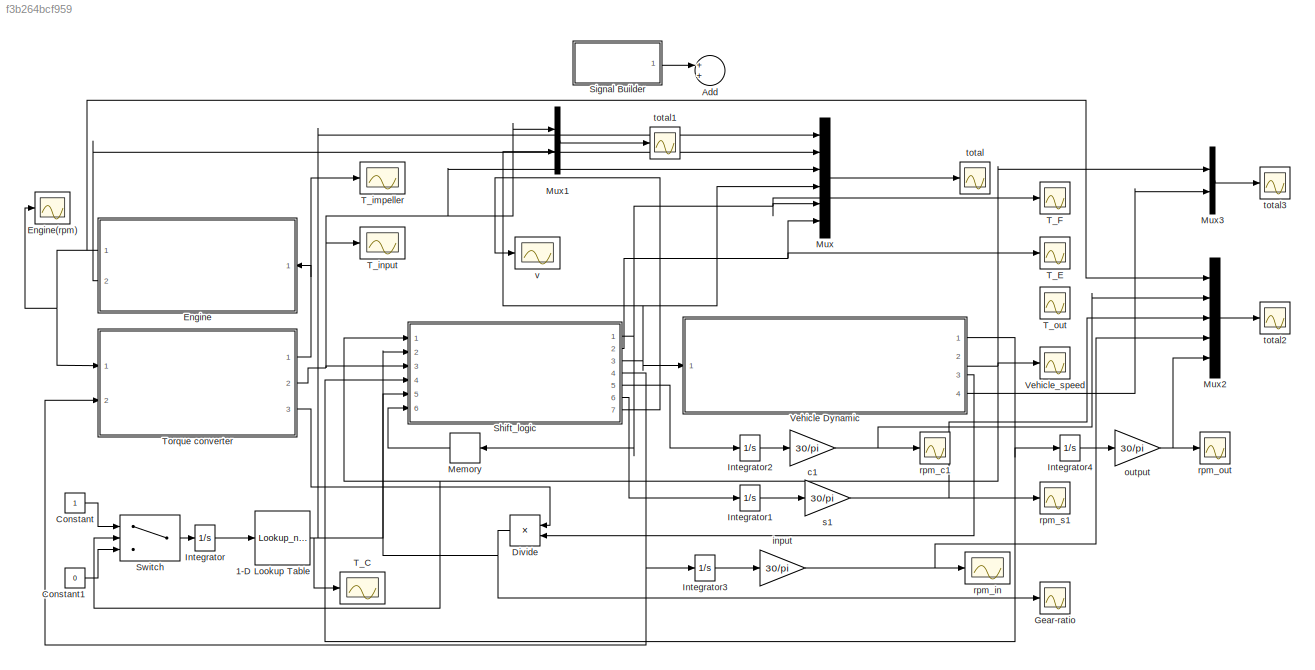
MODEL slx_f3b264bcf959
KIND model
CONFIG AbsTol = auto
CONFIG FixedStep = auto
CONFIG MaxStep = 0.01
CONFIG MinStep = auto
CONFIG RelTol = 1e-3
CONFIG SampleTimeConstraint = Unconstrained
CONFIG Solver = ode45
CONFIG SolverMode = SingleTasking
CONFIG SolverName = ode45
CONFIG StartTime = 0.0
CONFIG StopTime = 5
WORKSPACE source: MAT-file member
WORKSPACE A = 29.46
BLOCK [Lookup_n-D] 1-D Lookup Table
  BreakpointsForDimension1 = [0,0.1,0.2,0.3,0.4,0.5,0.6,0.7,0.8,0.9,1,1.1,1.2,1.3,1.4,1.5,1.6,1.7,1.8]
  InternalRulePriority = Speed
  NumberOfTableDimensions = 1
  Ports = [1, 1]
  RndMeth = Simplest
  Table = T_C
BLOCK [Sum] Add
  InputSameDT = off
  OutDataTypeStr = Inherit: Inherit via internal rule
  Ports = [2, 1]
  SaturateOnIntegerOverflow = off
BLOCK [Constant] Constant
BLOCK [Constant] Constant1
  Value = 0
BLOCK [Product] Divide
  InputSameDT = off
  Inputs = */
  OutDataTypeStr = Inherit: Inherit via internal rule
  Ports = [2, 1]
  RndMeth = Floor
  SaturateOnIntegerOverflow = off
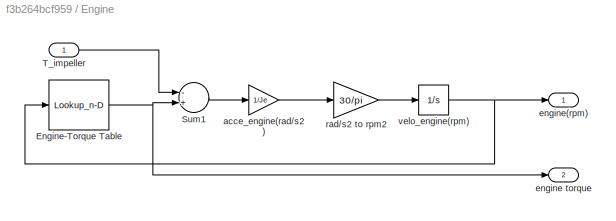
BLOCK [SubSystem] Engine
  Ports = [1, 2]
  RequestExecContextInheritance = off
  Variant = off
BLOCK [Scope] Engine(rpm)
  Ports = [1]
  ScopeSpecificationString = C++SS(StrPVP('Location','[162, 223, 1270, 752]'),StrPVP('Open','off'),MxPVP('AxesTitles',24,'struct(''axes1'',''%<SignalLabel>'')'),MxPVP('ScopeGraphics',28,'struct(''FigureColor'',''[0.5 0.5 0.5]'',''AxesColor'',''[0 0 0]'',''AxesTickColor'',''[1 1 1]'',''LineColors'',''[1 1 0;1 0 1;0 1 1;1 0 0;0 1 0;0 0 1]'',''LineStyles'',''-|-|-|-|-|-'',''LineWidths'',''[0.5 0.5 0.5 0.5 0.5 0.5]'',''MarkerStyl...<+306ch>
BLOCK [Lookup_n-D] Engine/Engine-Torque Table
  BreakpointsForDimension1 = Engine_speed
  InternalRulePriority = Speed
  NumberOfTableDimensions = 1
  Ports = [1, 1]
  RndMeth = Simplest
  Table = Engine_torque3
BLOCK [Sum] Engine/Sum1
  Inputs = -+
  Ports = [2, 1]
BLOCK [Inport] Engine/T_impeller
  IconDisplay = Port number
BLOCK [Gain] Engine/acce_engine(rad//s2)
  Gain = 1/Je
  OutDataTypeStr = Inherit: Inherit via internal rule
  ParamDataTypeStr = Inherit: Inherit via internal rule
  SaturateOnIntegerOverflow = off
BLOCK [Outport] Engine/engine torque
  IconDisplay = Port number
  Port = 2
BLOCK [Outport] Engine/engine(rpm)
  IconDisplay = Port number
BLOCK [Gain] Engine/rad//s2 to rpm2
  Gain = 30/pi
  OutDataTypeStr = Inherit: Inherit via internal rule
  ParamDataTypeStr = Inherit: Inherit via internal rule
  SaturateOnIntegerOverflow = off
BLOCK [Integrator] Engine/velo_engine(rpm)
  InitialCondition = 1000
  LowerSaturationLimit = 700
  Ports = [1, 1]
  UpperSaturationLimit = 7000
BLOCK [Scope] Gear-ratio
  Ports = [1]
  ScopeSpecificationString = C++SS(StrPVP('Location','[511, 295, 1037, 595]'),StrPVP('Open','off'),MxPVP('AxesTitles',24,'struct(''axes1'',''%<SignalLabel>'')'),MxPVP('ScopeGraphics',28,'struct(''FigureColor'',''[0.5 0.5 0.5]'',''AxesColor'',''[0 0 0]'',''AxesTickColor'',''[1 1 1]'',''LineColors'',''[1 1 0;1 0 1;0 1 1;1 0 0;0 1 0;0 0 1]'',''LineStyles'',''-|-|-|-|-|-'',''LineWidths'',''[0.5 0.5 0.5 0.5 0.5 0.5]'',''MarkerStyl...<+302ch>
BLOCK [Integrator] Integrator
  Ports = [1, 1]
BLOCK [Integrator] Integrator1
  Ports = [1, 1]
BLOCK [Integrator] Integrator2
  Ports = [1, 1]
BLOCK [Integrator] Integrator3
  Ports = [1, 1]
BLOCK [Integrator] Integrator4
  Ports = [1, 1]
BLOCK [Memory] Memory
  X0 = 1
BLOCK [Mux] Mux
  DisplayOption = bar
  Inputs = 6
  Ports = [6, 1]
BLOCK [Mux] Mux1
  DisplayOption = bar
  Inputs = 2
  Ports = [2, 1]
BLOCK [Mux] Mux2
  DisplayOption = bar
  Inputs = 5
  Ports = [5, 1]
BLOCK [Mux] Mux3
  DisplayOption = bar
  Inputs = 2
  Ports = [2, 1]
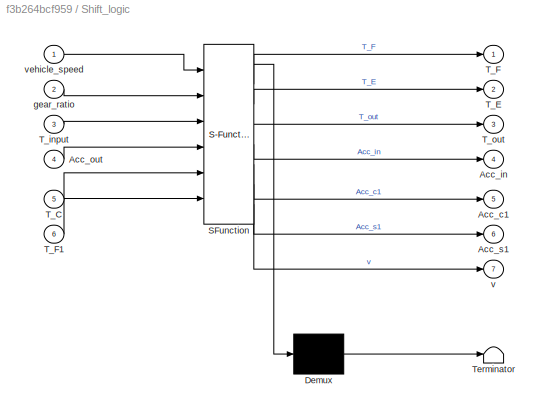
BLOCK [SubSystem] Shift_logic
  ErrorFcn = Stateflow.Translate.translate
  MinAlgLoopOccurrences = on
  PermitHierarchicalResolution = ExplicitOnly
  Ports = [6, 7]
  RequestExecContextInheritance = off
  SFBlockType = MATLAB Function
  TreatAsAtomicUnit = on
  Variant = off
BLOCK [Demux] Shift_logic/ Demux 
  Outputs = 1
  Ports = [1, 1]
BLOCK [S-Function] Shift_logic/ SFunction 
  EnableBusSupport = on
  FunctionName = sf_sfun
  PortCounts = [6 8]
  Ports = [6, 8]
  SFunctionDeploymentMode = off
  Tag = Stateflow S-Function projectme5481copy5 2
BLOCK [Terminator] Shift_logic/ Terminator 
BLOCK [Outport] Shift_logic/Acc_c1
  IconDisplay = Port number
  Port = 5
BLOCK [Outport] Shift_logic/Acc_in
  IconDisplay = Port number
  Port = 4
BLOCK [Inport] Shift_logic/Acc_out
  IconDisplay = Port number
  Port = 4
BLOCK [Outport] Shift_logic/Acc_s1
  IconDisplay = Port number
  Port = 6
BLOCK [Inport] Shift_logic/T_C
  IconDisplay = Port number
  Port = 5
BLOCK [Outport] Shift_logic/T_E
  IconDisplay = Port number
  Port = 2
BLOCK [Outport] Shift_logic/T_F
  IconDisplay = Port number
BLOCK [Inport] Shift_logic/T_F1
  IconDisplay = Port number
  Port = 6
BLOCK [Inport] Shift_logic/T_input
  IconDisplay = Port number
  Port = 3
BLOCK [Outport] Shift_logic/T_out
  IconDisplay = Port number
  Port = 3
BLOCK [Inport] Shift_logic/gear_ratio
  IconDisplay = Port number
  Port = 2
BLOCK [Outport] Shift_logic/v
  IconDisplay = Port number
  Port = 7
BLOCK [Inport] Shift_logic/vehicle_speed
  IconDisplay = Port number
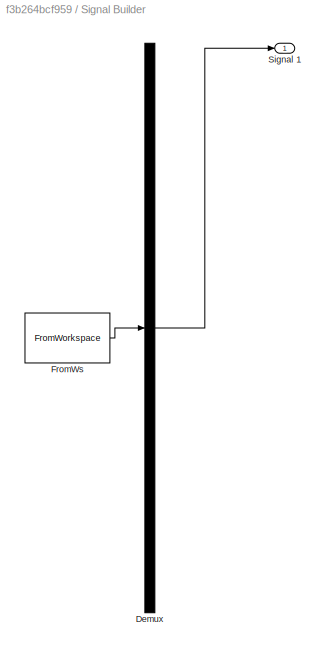
BLOCK [SubSystem] Signal Builder
  ClipboardFcn = sigbuilder_block('clipboard');
  CloseFcn = sigbuilder_block('close');
  ContinueFcn = sigbuilder_block('continue');
  CopyFcn = sigbuilder_block('copy');
  DeleteFcn = sigbuilder_block('delete');
  LoadFcn = sigbuilder_block('load');
  MaskHideContents = on
  ModelCloseFcn = sigbuilder_block('modelClose');
  NameChangeFcn = sigbuilder_block('namechange');
  OpenFcn = sigbuilder_block('open',[437.6 199.2 550.4 400 ]);
  PauseFcn = sigbuilder_block('pause');
  Ports = [0, 1]
  PreSaveFcn = sigbuilder_block('preSave');
  RequestExecContextInheritance = off
  StartFcn = sigbuilder_block('start');
  StopFcn = sigbuilder_block('stop');
  Tag = STV Subsys
  Variant = off
BLOCK [Demux] Signal Builder/Demux
  Outputs = 1
  Ports = [1, 1]
  Tag = STV Demux
BLOCK [FromWorkspace] Signal Builder/FromWs
  SampleTime = 0
  Tag = STV FromWs
  VariableName = tuvar
  ZeroCross = on
BLOCK [Outport] Signal Builder/Signal 1
  IconDisplay = Port number
  Tag = STV Outport
BLOCK [Switch] Switch
  InputSameDT = off
  SaturateOnIntegerOverflow = off
  Threshold = 15
BLOCK [Scope] T_C
  Ports = [1]
  ScopeSpecificationString = Simulink.scopes.TimeScopeBlockCfg('CurrentConfiguration', extmgr.ConfigurationSet(extmgr.Configuration('Core','General UI',true),extmgr.Configuration('Core','Source UI',true),extmgr.Configuration('Sources','WiredSimulink',true,'DataLoggingVariableName','ScopeData10','DataLoggingLimitDataPoints',true,'DataLoggingSaveFormat','Array','DataLoggingDecimation','1','DataLoggingDecimateData',true),extmgr....<+1682ch>
BLOCK [Scope] T_E
  Ports = [1]
  ScopeSpecificationString = C++SS(StrPVP('Location','[188, 365, 512, 604]'),StrPVP('Open','off'),MxPVP('AxesTitles',24,'struct(''axes1'',''%<SignalLabel>'')'),StrPVP('ShowLegends','off'),StrPVP('ScrollMode','off'),StrPVP('LimitDataPoints','on'),StrPVP('DataFormat','Array'),StrPVP('Decimation','1'),StrPVP('BlockParamSampleInput','off'))  <repeated x5 — deduplicated; at blocks: T_E, T_impeller, T_input, Vehicle_speed, rpm_s1>
BLOCK [Scope] T_F
  Ports = [1]
  ScopeSpecificationString = C++SS(StrPVP('Location','[188, 365, 512, 604]'),StrPVP('Open','off'),MxPVP('AxesTitles',24,'struct(''axes1'',''%<SignalLabel>'')'),MxPVP('ScopeGraphics',28,'struct(''FigureColor'',''[0.5 0.5 0.5]'',''AxesColor'',''[0 0 0]'',''AxesTickColor'',''[1 1 1]'',''LineColors'',''[1 1 0;1 0 1;0 1 1;1 0 0;0 1 0;0 0 1]'',''LineStyles'',''-|-|-|-|-|-'',''LineWidths'',''[0.5 0.5 0.5 0.5 0.5 0.5]'',''MarkerStyle...<+219ch>
BLOCK [Scope] T_impeller
  Ports = [1]
BLOCK [Scope] T_input
  Ports = [1]
BLOCK [Scope] T_out
  Ports = [1]
  ScopeSpecificationString = C++SS(StrPVP('Location','[268, 326, 1257, 650]'),StrPVP('Open','off'),MxPVP('AxesTitles',24,'struct(''axes1'',''%<SignalLabel>'')'),MxPVP('ScopeGraphics',28,'struct(''FigureColor'',''[0.5 0.5 0.5]'',''AxesColor'',''[0 0 0]'',''AxesTickColor'',''[1 1 1]'',''LineColors'',''[1 1 0;1 0 1;0 1 1;1 0 0;0 1 0;0 0 1]'',''LineStyles'',''-|-|-|-|-|-'',''LineWidths'',''[0.5 0.5 0.5 0.5 0.5 0.5]'',''MarkerStyl...<+305ch>
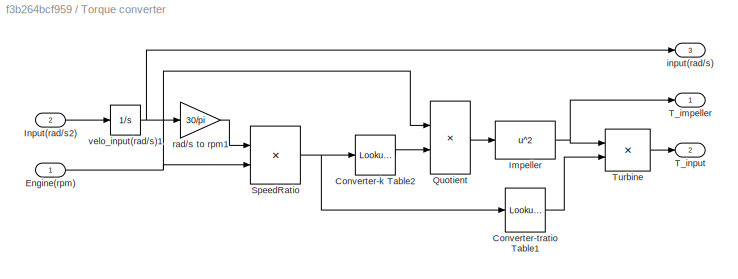
BLOCK [SubSystem] Torque converter
  Ports = [2, 3]
  RequestExecContextInheritance = off
  Variant = off
BLOCK [Lookup_n-D] Torque converter/Converter-k Table2
  BreakpointsForDimension1 = Converter_sratio
  InternalRulePriority = Speed
  NumberOfTableDimensions = 1
  Ports = [1, 1]
  RndMeth = Simplest
  Table = Converter_K
BLOCK [Lookup_n-D] Torque converter/Converter-tratio Table1
  BreakpointsForDimension1 = Converter_sratio
  InternalRulePriority = Speed
  NumberOfTableDimensions = 1
  Ports = [1, 1]
  RndMeth = Simplest
  Table = Converter_tratio
BLOCK [Inport] Torque converter/Engine(rpm)
  IconDisplay = Port number
BLOCK [Fcn] Torque converter/Impeller
  Expr = u^2
BLOCK [Inport] Torque converter/Input(rad//s2)
  IconDisplay = Port number
  Port = 2
BLOCK [Product] Torque converter/Quotient
  Inputs = */
  Ports = [2, 1]
  RndMeth = Floor
BLOCK [Product] Torque converter/SpeedRatio
  Inputs = */
  Ports = [2, 1]
  RndMeth = Floor
BLOCK [Outport] Torque converter/T_impeller
  IconDisplay = Port number
BLOCK [Outport] Torque converter/T_input
  IconDisplay = Port number
  Port = 2
BLOCK [Product] Torque converter/Turbine
  Ports = [2, 1]
  RndMeth = Floor
BLOCK [Outport] Torque converter/input(rad//s)
  IconDisplay = Port number
  Port = 3
BLOCK [Gain] Torque converter/rad//s to rpm1
  Gain = 30/pi
  OutDataTypeStr = Inherit: Inherit via internal rule
  ParamDataTypeStr = Inherit: Inherit via internal rule
  SaturateOnIntegerOverflow = off
BLOCK [Integrator] Torque converter/velo_input(rad//s)1
  Ports = [1, 1]
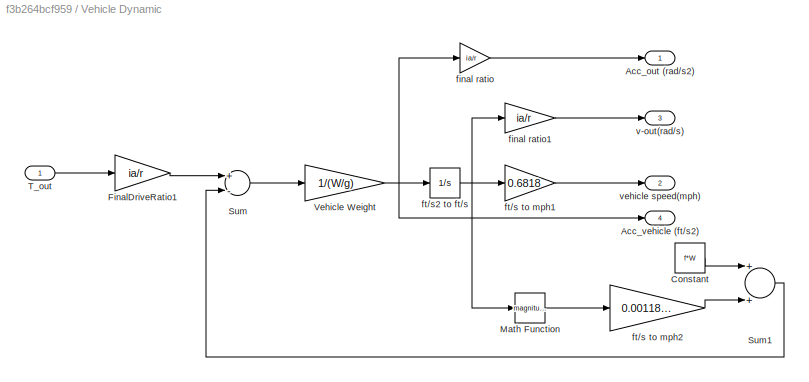
BLOCK [SubSystem] Vehicle Dynamic
  Ports = [1, 4]
  RequestExecContextInheritance = off
  Variant = off
BLOCK [Outport] Vehicle Dynamic/Acc_out (rad//s2)
  IconDisplay = Port number
BLOCK [Outport] Vehicle Dynamic/Acc_vehicle (ft//s2)
  IconDisplay = Port number
  Port = 4
BLOCK [Constant] Vehicle Dynamic/Constant
  Value = f*W
BLOCK [Gain] Vehicle Dynamic/FinalDriveRatio1
  Gain = ia/r
BLOCK [Math] Vehicle Dynamic/Math Function
  Operator = magnitude^2
  Ports = [1, 1]
BLOCK [Sum] Vehicle Dynamic/Sum
  Inputs = +-
  Ports = [2, 1]
BLOCK [Sum] Vehicle Dynamic/Sum1
  Ports = [2, 1]
BLOCK [Inport] Vehicle Dynamic/T_out
  IconDisplay = Port number
BLOCK [Gain] Vehicle Dynamic/Vehicle Weight
  Gain = 1/(W/g)
BLOCK [Gain] Vehicle Dynamic/final ratio
  Gain = ia/r
  OutDataTypeStr = Inherit: Inherit via internal rule
  ParamDataTypeStr = Inherit: Inherit via internal rule
  SaturateOnIntegerOverflow = off
BLOCK [Gain] Vehicle Dynamic/final ratio1
  Gain = ia/r
  OutDataTypeStr = Inherit: Inherit via internal rule
  ParamDataTypeStr = Inherit: Inherit via internal rule
  SaturateOnIntegerOverflow = off
BLOCK [Gain] Vehicle Dynamic/ft//s to mph1
  Gain = 0.6818
  OutDataTypeStr = Inherit: Inherit via internal rule
  ParamDataTypeStr = Inherit: Inherit via internal rule
  SaturateOnIntegerOverflow = off
BLOCK [Gain] Vehicle Dynamic/ft//s to mph2
  Gain = 0.00118*Cd*A
  OutDataTypeStr = Inherit: Inherit via internal rule
  ParamDataTypeStr = Inherit: Inherit via internal rule
  SaturateOnIntegerOverflow = off
BLOCK [Integrator] Vehicle Dynamic/ft//s2 to ft//s
  Ports = [1, 1]
BLOCK [Outport] Vehicle Dynamic/v-out(rad//s)
  IconDisplay = Port number
  Port = 3
BLOCK [Outport] Vehicle Dynamic/vehicle speed(mph)
  IconDisplay = Port number
  Port = 2
BLOCK [Scope] Vehicle_speed
  Ports = [1]
BLOCK [Gain] c1
  Gain = 30/pi
  OutDataTypeStr = Inherit: Inherit via internal rule
  ParamDataTypeStr = Inherit: Inherit via internal rule
  SaturateOnIntegerOverflow = off
BLOCK [Gain] input
  Gain = 30/pi
  OutDataTypeStr = Inherit: Inherit via internal rule
  ParamDataTypeStr = Inherit: Inherit via internal rule
  SaturateOnIntegerOverflow = off
BLOCK [Gain] output
  Gain = 30/pi
  OutDataTypeStr = Inherit: Inherit via internal rule
  ParamDataTypeStr = Inherit: Inherit via internal rule
  SaturateOnIntegerOverflow = off
BLOCK [Scope] rpm_c1
  Ports = [1]
  ScopeSpecificationString = C++SS(StrPVP('Location','[188, 365, 512, 604]'),StrPVP('Open','off'),MxPVP('AxesTitles',24,'struct(''axes1'',''%<SignalLabel>'')'),StrPVP('ShowLegends','off'),StrPVP('SaveName','ScopeData1'),StrPVP('ScrollMode','off'),StrPVP('LimitDataPoints','on'),StrPVP('DataFormat','Array'),StrPVP('Decimation','1'),StrPVP('BlockParamSampleInput','off'))
BLOCK [Scope] rpm_in
  Ports = [1]
  ScopeSpecificationString = C++SS(StrPVP('Location','[1033, 513, 1522, 752]'),StrPVP('Open','off'),MxPVP('AxesTitles',24,'struct(''axes1'',''%<SignalLabel>'')'),MxPVP('ScopeGraphics',28,'struct(''FigureColor'',''[0.5 0.5 0.5]'',''AxesColor'',''[0 0 0]'',''AxesTickColor'',''[1 1 1]'',''LineColors'',''[1 1 0;1 0 1;0 1 1;1 0 0;0 1 0;0 0 1]'',''LineStyles'',''-|-|-|-|-|-'',''LineWidths'',''[0.5 0.5 0.5 0.5 0.5 0.5]'',''MarkerSty...<+308ch>
BLOCK [Scope] rpm_out
  Ports = [1]
  ScopeSpecificationString = C++SS(StrPVP('Location','[188, 365, 1317, 873]'),StrPVP('Open','off'),MxPVP('AxesTitles',24,'struct(''axes1'',''%<SignalLabel>'')'),MxPVP('ScopeGraphics',28,'struct(''FigureColor'',''[0.5 0.5 0.5]'',''AxesColor'',''[0 0 0]'',''AxesTickColor'',''[1 1 1]'',''LineColors'',''[1 1 0;1 0 1;0 1 1;1 0 0;0 1 0;0 0 1]'',''LineStyles'',''-|-|-|-|-|-'',''LineWidths'',''[0.5 0.5 0.5 0.5 0.5 0.5]'',''MarkerStyl...<+272ch>
BLOCK [Scope] rpm_s1
  Ports = [1]
BLOCK [Gain] s1
  Gain = 30/pi
  OutDataTypeStr = Inherit: Inherit via internal rule
  ParamDataTypeStr = Inherit: Inherit via internal rule
  SaturateOnIntegerOverflow = off
BLOCK [Scope] total
  Ports = [1]
  ScopeSpecificationString = Simulink.scopes.TimeScopeBlockCfg('CurrentConfiguration', extmgr.ConfigurationSet(extmgr.Configuration('Core','General UI',true),extmgr.Configuration('Core','Source UI',true),extmgr.Configuration('Sources','WiredSimulink',true,'DataLoggingVariableName','ScopeData11','DataLoggingLimitDataPoints',true,'DataLoggingSaveFormat','Array','DataLoggingDecimation','1','DataLoggingDecimateData',true),extmgr....<+1796ch>
BLOCK [Scope] total1
  Ports = [1]
  ScopeSpecificationString = Simulink.scopes.TimeScopeBlockCfg('CurrentConfiguration', extmgr.ConfigurationSet(extmgr.Configuration('Core','General UI',true),extmgr.Configuration('Core','Source UI',true),extmgr.Configuration('Sources','WiredSimulink',true,'DataLoggingVariableName','ScopeData12','DataLoggingLimitDataPoints',true,'DataLoggingSaveFormat','Array','DataLoggingDecimation','1','DataLoggingDecimateData',true),extmgr....<+1730ch>
BLOCK [Scope] total2
  Ports = [1]
  ScopeSpecificationString = Simulink.scopes.TimeScopeBlockCfg('CurrentConfiguration', extmgr.ConfigurationSet(extmgr.Configuration('Core','General UI',true),extmgr.Configuration('Core','Source UI',true),extmgr.Configuration('Sources','WiredSimulink',true,'DataLoggingVariableName','ScopeData5','DataLoggingLimitDataPoints',true,'DataLoggingSaveFormat','Array','DataLoggingDecimation','1','DataLoggingDecimateData',true),extmgr.C...<+1790ch>
BLOCK [Scope] total3
  Ports = [1]
  ScopeSpecificationString = Simulink.scopes.TimeScopeBlockCfg('CurrentConfiguration', extmgr.ConfigurationSet(extmgr.Configuration('Core','General UI',true),extmgr.Configuration('Core','Source UI',true),extmgr.Configuration('Sources','WiredSimulink',true,'DataLoggingVariableName','ScopeData13','DataLoggingLimitDataPoints',true,'DataLoggingSaveFormat','Array','DataLoggingDecimation','1','DataLoggingDecimateData',true),extmgr....<+1773ch>
BLOCK [Scope] v 
  Ports = [1]
  ScopeSpecificationString = C++SS(StrPVP('Location','[531, 657, 1424, 896]'),StrPVP('Open','off'),MxPVP('AxesTitles',24,'struct(''axes1'',''%<SignalLabel>'')'),MxPVP('ScopeGraphics',28,'struct(''FigureColor'',''[0.5 0.5 0.5]'',''AxesColor'',''[0 0 0]'',''AxesTickColor'',''[1 1 1]'',''LineColors'',''[1 1 0;1 0 1;0 1 1;1 0 0;0 1 0;0 0 1]'',''LineStyles'',''-|-|-|-|-|-'',''LineWidths'',''[0.5 0.5 0.5 0.5 0.5 0.5]'',''MarkerStyl...<+302ch>
NET 1-D Lookup Table:1 -> Mux:1, Shift_logic:5, T_C:1
LINE Constant1:1 -> Switch:3
LINE Constant:1 -> Switch:1
NET Divide:1 -> Gear-ratio:1, Shift_logic:2
NET Engine/Engine-Torque Table:1 -> Engine/Sum1:2, Engine/engine torque:1
LINE Engine/Sum1:1 -> Engine/acce_engine(rad//s2):1
LINE Engine/T_impeller:1 -> Engine/Sum1:1
LINE Engine/acce_engine(rad//s2):1 -> Engine/rad//s2 to rpm2:1
LINE Engine/rad//s2 to rpm2:1 -> Engine/velo_engine(rpm):1
NET Engine/velo_engine(rpm):1 -> Engine/Engine-Torque Table:1, Engine/engine(rpm):1
NET Engine:1 -> Engine(rpm):1, Mux2:1, Torque converter:1
LINE Engine:2 -> Mux:2
LINE Integrator1:1 -> s1:1
LINE Integrator2:1 -> c1:1
LINE Integrator3:1 -> input:1
LINE Integrator4:1 -> output:1
LINE Integrator:1 -> 1-D Lookup Table:1
LINE Memory:1 -> Shift_logic:6
LINE Mux1:1 -> total1:1
LINE Mux2:1 -> total2:1
LINE Mux3:1 -> total3:1
LINE Mux:1 -> total:1
NET Shift_logic:1 -> Memory:1, Mux:5, T_F:1
NET Shift_logic:2 -> Mux:6, T_E:1
NET Shift_logic:3 -> Mux1:2, Mux:4, Vehicle Dynamic:1
NET Shift_logic:4 -> Integrator3:1, Torque converter:2
LINE Shift_logic:5 -> Integrator2:1
LINE Shift_logic:6 -> Integrator1:1
LINE Shift_logic:7 -> v :1
LINE Signal Builder:1 -> Add:1
LINE Switch:1 -> Integrator:1
LINE Torque converter/Converter-k Table2:1 -> Torque converter/Quotient:2
LINE Torque converter/Converter-tratio Table1:1 -> Torque converter/Turbine:2
NET Torque converter/Engine(rpm):1 -> Torque converter/Quotient:1, Torque converter/SpeedRatio:2
NET Torque converter/Impeller:1 -> Torque converter/T_impeller:1, Torque converter/Turbine:1
LINE Torque converter/Input(rad//s2):1 -> Torque converter/velo_input(rad//s)1:1
LINE Torque converter/Quotient:1 -> Torque converter/Impeller:1
NET Torque converter/SpeedRatio:1 -> Torque converter/Converter-k Table2:1, Torque converter/Converter-tratio Table1:1
LINE Torque converter/Turbine:1 -> Torque converter/T_input:1
LINE Torque converter/rad//s to rpm1:1 -> Torque converter/SpeedRatio:1
NET Torque converter/velo_input(rad//s)1:1 -> Torque converter/input(rad//s):1, Torque converter/rad//s to rpm1:1
NET Torque converter:1 -> Engine:1, T_impeller:1
NET Torque converter:2 -> Mux1:1, Mux:3, Shift_logic:3, T_input:1
LINE Torque converter:3 -> Divide:1
LINE Vehicle Dynamic/Constant:1 -> Vehicle Dynamic/Sum1:1
LINE Vehicle Dynamic/FinalDriveRatio1:1 -> Vehicle Dynamic/Sum:1
LINE Vehicle Dynamic/Math Function:1 -> Vehicle Dynamic/ft//s to mph2:1
LINE Vehicle Dynamic/Sum1:1 -> Vehicle Dynamic/Sum:2
LINE Vehicle Dynamic/Sum:1 -> Vehicle Dynamic/Vehicle Weight:1
LINE Vehicle Dynamic/T_out:1 -> Vehicle Dynamic/FinalDriveRatio1:1
NET Vehicle Dynamic/Vehicle Weight:1 -> Vehicle Dynamic/Acc_vehicle (ft//s2):1, Vehicle Dynamic/final ratio:1, Vehicle Dynamic/ft//s2 to ft//s:1
LINE Vehicle Dynamic/final ratio1:1 -> Vehicle Dynamic/v-out(rad//s):1
LINE Vehicle Dynamic/final ratio:1 -> Vehicle Dynamic/Acc_out (rad//s2):1
LINE Vehicle Dynamic/ft//s to mph1:1 -> Vehicle Dynamic/vehicle speed(mph):1
LINE Vehicle Dynamic/ft//s to mph2:1 -> Vehicle Dynamic/Sum1:2
NET Vehicle Dynamic/ft//s2 to ft//s:1 -> Vehicle Dynamic/Math Function:1, Vehicle Dynamic/final ratio1:1, Vehicle Dynamic/ft//s to mph1:1
NET Vehicle Dynamic:1 -> Integrator4:1, Shift_logic:4
NET Vehicle Dynamic:2 -> Mux3:1, Shift_logic:1, Switch:2, Vehicle_speed:1
LINE Vehicle Dynamic:3 -> Divide:2
LINE Vehicle Dynamic:4 -> Mux3:2
NET c1:1 -> Mux2:2, rpm_c1:1
NET input:1 -> Mux2:4, rpm_in:1
NET output:1 -> Mux2:5, rpm_out:1
NET s1:1 -> Mux2:3, rpm_s1:1
note: NET lines group one-source signal fan-out (src -> all destinations, sorted); 1:1 wires keep LINE
CHART Shift_logic states=1 transitions=1
  STATE_LABEL 'eML_blk_kernel()'
  STATE_LABEL 'SCRIPT:\nfunction [T_F,T_E,T_out,Acc_in,Acc_c1,Acc_s1,v] = fcn(vehicle_speed,gear_ratio,T_input,Acc_out,T_C,T_F1)\ni1=1/0.223;\ni2=2.8722;\nI_input=0.02;\nI_c2r3=0.02;\nI_s1=0.02;\nI_s3=0.02;\nI_c1r2=0.02;\nI_out=0.02;\nT_F=0;\nT_E=0;\nT_out=0;\nAcc_in=0;\nAcc_c1=0;\nAcc_s1=0;\nv=0;\nif (vehicle_speed<15)\n    Acc_in=Acc_out/0.223;\n    T_out=4.4837*T_input-4.4837*I_input*Acc_in-0.4459*I_c2r3*Acc_in-1.8528*I_s1*Acc_...<+1586ch>'
